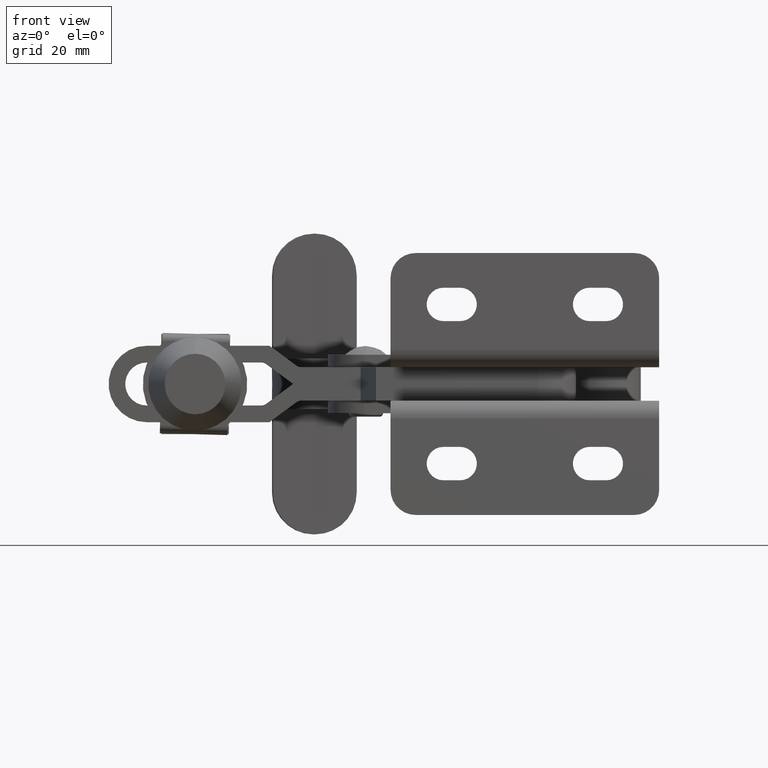
[diagram: clean part render]
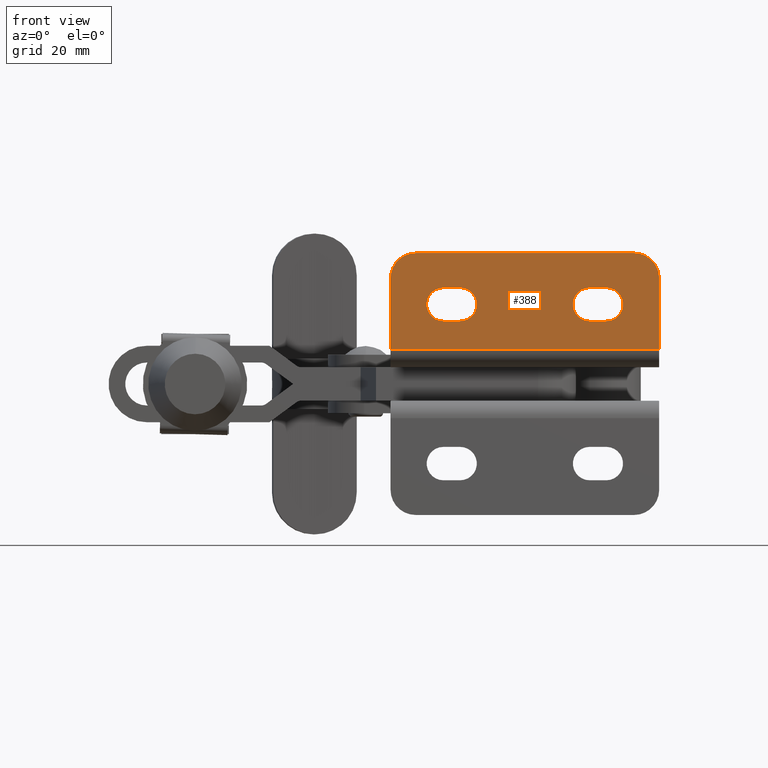
[diagram: same view with one face highlighted and labeled with its STEP entity id]
A machine part, front view. The second image highlights one B-rep face of the part: STEP entity #388.
In plain terms, the highlighted planar face has unit normal (0, -1, 0).
Its self-contained STEP definition (entity closure, byte-faithful):
#63 = EDGE_LOOP ( 'NONE', ( #9725, #2784, #10987, #11085 ) ) ;
#388 = ADVANCED_FACE ( 'NONE', ( #8095, #702, #10316 ), #2631, .T. ) ;
#509 = VECTOR ( 'NONE', #3337, 1000.000000000000000 ) ;
#554 = CARTESIAN_POINT ( 'NONE',  ( -38.28493261757659400, -52.70000000000006000, 19.05000000000007500 ) ) ;
#572 = VERTEX_POINT ( 'NONE', #8945 ) ;
#702 = FACE_BOUND ( 'NONE', #8708, .T. ) ;
#775 = CIRCLE ( 'NONE', #8023, 4.000000000000001800 ) ;
#850 = LINE ( 'NONE', #10354, #10461 ) ;
#950 = DIRECTION ( 'NONE',  ( 0.0000000000000000000, 0.0000000000000000000, 1.000000000000000000 ) ) ;
#993 = CARTESIAN_POINT ( 'NONE',  ( 7.365067382423279500, -52.70000000000002400, 27.35000000000007200 ) ) ;
#1070 = CARTESIAN_POINT ( 'NONE',  ( -34.28493261757659400, -52.70000000000005300, 11.05000000000007000 ) ) ;
#1122 = EDGE_CURVE ( 'NONE', #5197, #6612, #5621, .T. ) ;
#1163 = VECTOR ( 'NONE', #9476, 1000.000000000000000 ) ;
#1252 = EDGE_CURVE ( 'NONE', #6309, #3357, #4615, .T. ) ;
#1436 = CIRCLE ( 'NONE', #6080, 4.000000000000001800 ) ;
#1567 = DIRECTION ( 'NONE',  ( 0.0000000000000000000, 1.000000000000000000, 2.635945084823746800E-016 ) ) ;
#2081 = LINE ( 'NONE', #10274, #4564 ) ;
#2135 = VECTOR ( 'NONE', #4551, 1000.000000000000000 ) ;
#2271 = CARTESIAN_POINT ( 'NONE',  ( 0.7150673824234052800, -52.70000000000002400, 19.05000000000007500 ) ) ;
#2575 = VERTEX_POINT ( 'NONE', #993 ) ;
#2631 = PLANE ( 'NONE',  #7462 ) ;
#2700 = CARTESIAN_POINT ( 'NONE',  ( -3.284932617576591200, -52.70000000000006000, 19.05000000000007500 ) ) ;
#2784 = ORIENTED_EDGE ( 'NONE', *, *, #5794, .T. ) ;
#2953 = CARTESIAN_POINT ( 'NONE',  ( -38.28493261757659400, -52.70000000000005300, 11.05000000000007000 ) ) ;
#2962 = AXIS2_PLACEMENT_3D ( 'NONE', #3971, #11431, #6752 ) ;
#2981 = LINE ( 'NONE', #554, #509 ) ;
#2982 = EDGE_CURVE ( 'NONE', #6658, #9776, #775, .T. ) ;
#3001 = CARTESIAN_POINT ( 'NONE',  ( -38.28493261757659400, -52.70000000000006000, 19.05000000000007500 ) ) ;
#3140 = ORIENTED_EDGE ( 'NONE', *, *, #4379, .T. ) ;
#3254 = VERTEX_POINT ( 'NONE', #6804 ) ;
#3305 = VERTEX_POINT ( 'NONE', #2271 ) ;
#3318 = DIRECTION ( 'NONE',  ( 0.0000000000000000000, -1.000000000000000000, 0.0000000000000000000 ) ) ;
#3337 = DIRECTION ( 'NONE',  ( 1.000000000000000000, 0.0000000000000000000, 0.0000000000000000000 ) ) ;
#3357 = VERTEX_POINT ( 'NONE', #8840 ) ;
#3593 = CIRCLE ( 'NONE', #3661, 4.000000000000001800 ) ;
#3661 = AXIS2_PLACEMENT_3D ( 'NONE', #7113, #1567, #8038 ) ;
#3739 = VERTEX_POINT ( 'NONE', #1070 ) ;
#3915 = EDGE_CURVE ( 'NONE', #3357, #2575, #11218, .T. ) ;
#3971 = CARTESIAN_POINT ( 'NONE',  ( -44.93493261757656400, -52.70000000000002400, 21.34999999999994100 ) ) ;
#4067 = VECTOR ( 'NONE', #6232, 1000.000000000000000 ) ;
#4089 = CARTESIAN_POINT ( 'NONE',  ( 0.7150673824234087300, -52.70000000000006000, 15.05000000000007200 ) ) ;
#4165 = EDGE_CURVE ( 'NONE', #9815, #6612, #11508, .T. ) ;
#4274 = EDGE_CURVE ( 'NONE', #572, #3739, #1436, .T. ) ;
#4379 = EDGE_CURVE ( 'NONE', #10217, #3305, #850, .T. ) ;
#4540 = EDGE_CURVE ( 'NONE', #3305, #3254, #12082, .T. ) ;
#4551 = DIRECTION ( 'NONE',  ( -0.0000000000000000000, -0.0000000000000000000, 1.000000000000000000 ) ) ;
#4564 = VECTOR ( 'NONE', #4704, 1000.000000000000000 ) ;
#4581 = CARTESIAN_POINT ( 'NONE',  ( -3.284932617576591200, -52.70000000000005300, 11.05000000000007200 ) ) ;
#4615 = LINE ( 'NONE', #7054, #2135 ) ;
#4677 = DIRECTION ( 'NONE',  ( -1.000000000000000000, -0.0000000000000000000, -0.0000000000000000000 ) ) ;
#4704 = DIRECTION ( 'NONE',  ( -1.000000000000000000, -0.0000000000000000000, -0.0000000000000000000 ) ) ;
#4801 = CARTESIAN_POINT ( 'NONE',  ( -50.93493261757669900, -52.70000000000002400, 27.35000000000007200 ) ) ;
#4808 = DIRECTION ( 'NONE',  ( -1.000000000000000000, 0.0000000000000000000, 0.0000000000000000000 ) ) ;
#4908 = ORIENTED_EDGE ( 'NONE', *, *, #4165, .F. ) ;
#4959 = CARTESIAN_POINT ( 'NONE',  ( -50.93493261757669900, -52.70000000000002400, 4.199999999999962900 ) ) ;
#5022 = DIRECTION ( 'NONE',  ( 0.0000000000000000000, 0.0000000000000000000, 1.000000000000000000 ) ) ;
#5127 = VECTOR ( 'NONE', #4808, 1000.000000000000000 ) ;
#5197 = VERTEX_POINT ( 'NONE', #6174 ) ;
#5247 = AXIS2_PLACEMENT_3D ( 'NONE', #4089, #10601, #5022 ) ;
#5448 = CARTESIAN_POINT ( 'NONE',  ( -38.28493261757659400, -52.70000000000006000, 15.05000000000007200 ) ) ;
#5581 = ORIENTED_EDGE ( 'NONE', *, *, #6545, .T. ) ;
#5621 = CIRCLE ( 'NONE', #2962, 6.000000000000130600 ) ;
#5794 = EDGE_CURVE ( 'NONE', #9776, #572, #2981, .T. ) ;
#6080 = AXIS2_PLACEMENT_3D ( 'NONE', #12119, #6514, #950 ) ;
#6174 = CARTESIAN_POINT ( 'NONE',  ( -44.93493261757655700, -52.70000000000002400, 27.35000000000007200 ) ) ;
#6216 = ORIENTED_EDGE ( 'NONE', *, *, #4540, .T. ) ;
#6232 = DIRECTION ( 'NONE',  ( 0.0000000000000000000, 0.0000000000000000000, 1.000000000000000000 ) ) ;
#6309 = VERTEX_POINT ( 'NONE', #10644 ) ;
#6373 = DIRECTION ( 'NONE',  ( 0.0000000000000000000, 0.0000000000000000000, 1.000000000000000000 ) ) ;
#6409 = LINE ( 'NONE', #4801, #1163 ) ;
#6514 = DIRECTION ( 'NONE',  ( 0.0000000000000000000, 1.000000000000000000, 2.635945084823746800E-016 ) ) ;
#6545 = EDGE_CURVE ( 'NONE', #3254, #6571, #9349, .T. ) ;
#6571 = VERTEX_POINT ( 'NONE', #9339 ) ;
#6612 = VERTEX_POINT ( 'NONE', #8467 ) ;
#6639 = ORIENTED_EDGE ( 'NONE', *, *, #1122, .T. ) ;
#6658 = VERTEX_POINT ( 'NONE', #2953 ) ;
#6752 = DIRECTION ( 'NONE',  ( -1.000000000000000000, 0.0000000000000000000, 1.156482317317846300E-015 ) ) ;
#6804 = CARTESIAN_POINT ( 'NONE',  ( 0.7150673824234087300, -52.70000000000005300, 11.05000000000007200 ) ) ;
#6868 = VECTOR ( 'NONE', #4677, 1000.000000000000000 ) ;
#7054 = CARTESIAN_POINT ( 'NONE',  ( 13.36506738242340700, -52.70000000000002400, 15.77500000000001800 ) ) ;
#7073 = EDGE_CURVE ( 'NONE', #3739, #6658, #2081, .T. ) ;
#7113 = CARTESIAN_POINT ( 'NONE',  ( -3.284932617576591200, -52.70000000000006000, 15.05000000000007200 ) ) ;
#7188 = ORIENTED_EDGE ( 'NONE', *, *, #8461, .T. ) ;
#7462 = AXIS2_PLACEMENT_3D ( 'NONE', #11160, #9017, #8853 ) ;
#7549 = DIRECTION ( 'NONE',  ( 1.000000000000000000, 0.0000000000000000000, 0.0000000000000000000 ) ) ;
#7622 = ORIENTED_EDGE ( 'NONE', *, *, #1252, .T. ) ;
#7776 = EDGE_CURVE ( 'NONE', #2575, #5197, #6409, .T. ) ;
#7969 = ORIENTED_EDGE ( 'NONE', *, *, #10731, .F. ) ;
#8023 = AXIS2_PLACEMENT_3D ( 'NONE', #5448, #11985, #6373 ) ;
#8038 = DIRECTION ( 'NONE',  ( 0.0000000000000000000, 0.0000000000000000000, 1.000000000000000000 ) ) ;
#8084 = CARTESIAN_POINT ( 'NONE',  ( -50.93493261757669900, -52.70000000000002400, 10.67170454773020800 ) ) ;
#8095 = FACE_BOUND ( 'NONE', #63, .T. ) ;
#8461 = EDGE_CURVE ( 'NONE', #6571, #10217, #3593, .T. ) ;
#8467 = CARTESIAN_POINT ( 'NONE',  ( -50.93493261757669900, -52.70000000000002400, 21.34999999999994100 ) ) ;
#8708 = EDGE_LOOP ( 'NONE', ( #7188, #3140, #6216, #5581 ) ) ;
#8840 = CARTESIAN_POINT ( 'NONE',  ( 13.36506738242340700, -52.70000000000002400, 21.34999999999994100 ) ) ;
#8853 = DIRECTION ( 'NONE',  ( 0.0000000000000000000, 0.0000000000000000000, -1.000000000000000000 ) ) ;
#8867 = CARTESIAN_POINT ( 'NONE',  ( 7.365067382423280400, -52.70000000000002400, 21.34999999999994100 ) ) ;
#8945 = CARTESIAN_POINT ( 'NONE',  ( -34.28493261757659400, -52.70000000000002400, 19.05000000000007500 ) ) ;
#9017 = DIRECTION ( 'NONE',  ( 0.0000000000000000000, -1.000000000000000000, 0.0000000000000000000 ) ) ;
#9339 = CARTESIAN_POINT ( 'NONE',  ( -3.284932617576591200, -52.70000000000005300, 11.05000000000007200 ) ) ;
#9349 = LINE ( 'NONE', #4581, #6868 ) ;
#9476 = DIRECTION ( 'NONE',  ( -1.000000000000000000, -0.0000000000000000000, -0.0000000000000000000 ) ) ;
#9626 = ORIENTED_EDGE ( 'NONE', *, *, #3915, .T. ) ;
#9725 = ORIENTED_EDGE ( 'NONE', *, *, #2982, .T. ) ;
#9776 = VERTEX_POINT ( 'NONE', #3001 ) ;
#9783 = ORIENTED_EDGE ( 'NONE', *, *, #7776, .T. ) ;
#9815 = VERTEX_POINT ( 'NONE', #4959 ) ;
#9830 = DIRECTION ( 'NONE',  ( 0.0000000000000000000, 0.0000000000000000000, -1.000000000000000000 ) ) ;
#9917 = AXIS2_PLACEMENT_3D ( 'NONE', #8867, #3318, #9830 ) ;
#10076 = LINE ( 'NONE', #10386, #5127 ) ;
#10217 = VERTEX_POINT ( 'NONE', #2700 ) ;
#10274 = CARTESIAN_POINT ( 'NONE',  ( -38.28493261757659400, -52.70000000000005300, 11.05000000000007000 ) ) ;
#10316 = FACE_OUTER_BOUND ( 'NONE', #11315, .T. ) ;
#10354 = CARTESIAN_POINT ( 'NONE',  ( -3.284932617576591200, -52.70000000000006000, 19.05000000000007500 ) ) ;
#10386 = CARTESIAN_POINT ( 'NONE',  ( -18.78493261757664700, -52.70000000000002400, 4.199999999999961100 ) ) ;
#10461 = VECTOR ( 'NONE', #7549, 1000.000000000000000 ) ;
#10601 = DIRECTION ( 'NONE',  ( 0.0000000000000000000, 1.000000000000000000, 2.635945084823746800E-016 ) ) ;
#10644 = CARTESIAN_POINT ( 'NONE',  ( 13.36506738242340700, -52.70000000000002400, 4.199999999999962900 ) ) ;
#10731 = EDGE_CURVE ( 'NONE', #6309, #9815, #10076, .T. ) ;
#10987 = ORIENTED_EDGE ( 'NONE', *, *, #4274, .T. ) ;
#11085 = ORIENTED_EDGE ( 'NONE', *, *, #7073, .T. ) ;
#11160 = CARTESIAN_POINT ( 'NONE',  ( -50.93493261757669900, -52.70000000000002400, 27.35000000000007200 ) ) ;
#11218 = CIRCLE ( 'NONE', #9917, 5.999999999999872100 ) ;
#11315 = EDGE_LOOP ( 'NONE', ( #4908, #7969, #7622, #9626, #9783, #6639 ) ) ;
#11431 = DIRECTION ( 'NONE',  ( 5.782411586589231400E-016, -1.000000000000000000, -0.0000000000000000000 ) ) ;
#11508 = LINE ( 'NONE', #8084, #4067 ) ;
#11985 = DIRECTION ( 'NONE',  ( 0.0000000000000000000, 1.000000000000000000, 2.635945084823746800E-016 ) ) ;
#12082 = CIRCLE ( 'NONE', #5247, 4.000000000000001800 ) ;
#12119 = CARTESIAN_POINT ( 'NONE',  ( -34.28493261757659400, -52.70000000000006000, 15.05000000000007200 ) ) ;